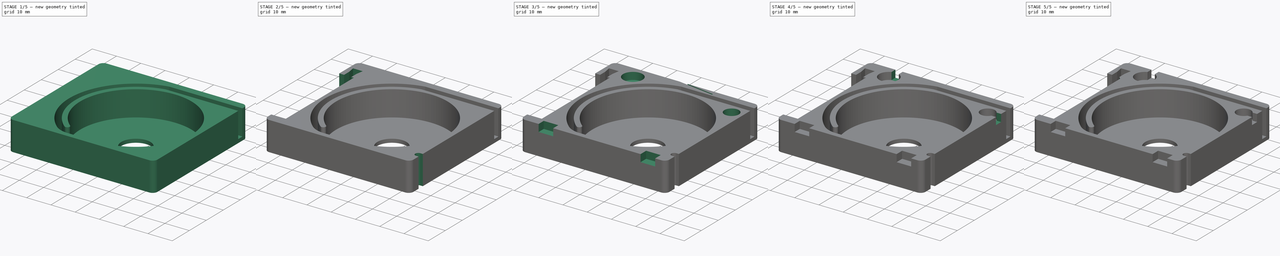
[diagram: build sequence overview — one tinted view per stage of 5, left to right]
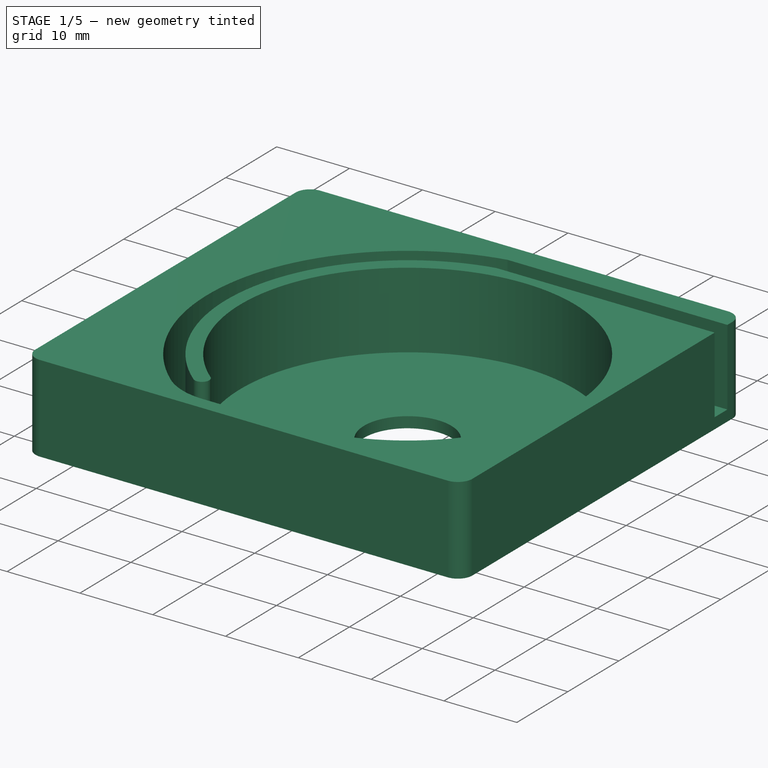
[diagram: stage 1 of 5 — iso view after this stage's code; geometry added in this stage tinted green]
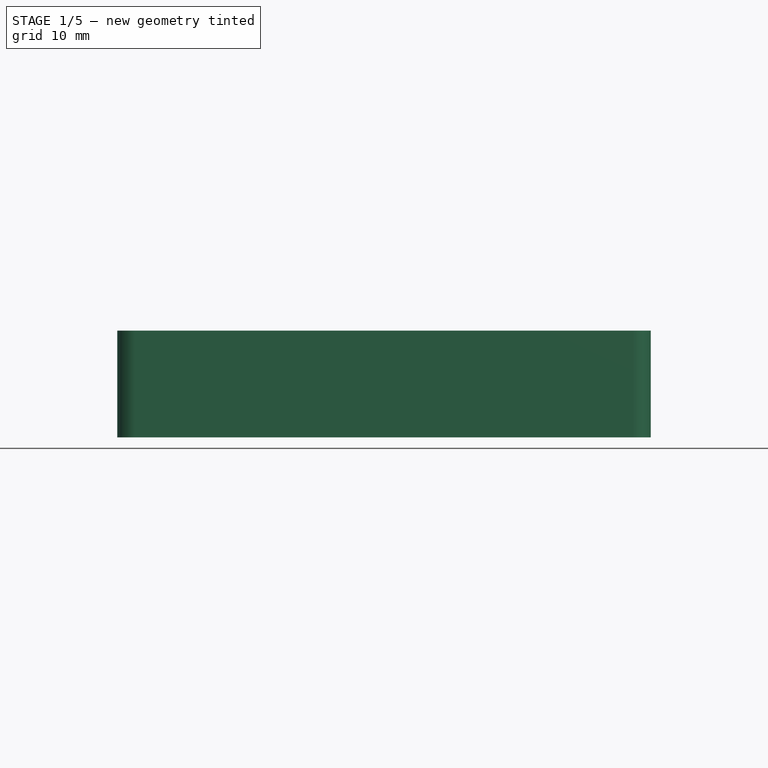
[diagram: stage 1 of 5 — front view after this stage's code; geometry added in this stage tinted green]
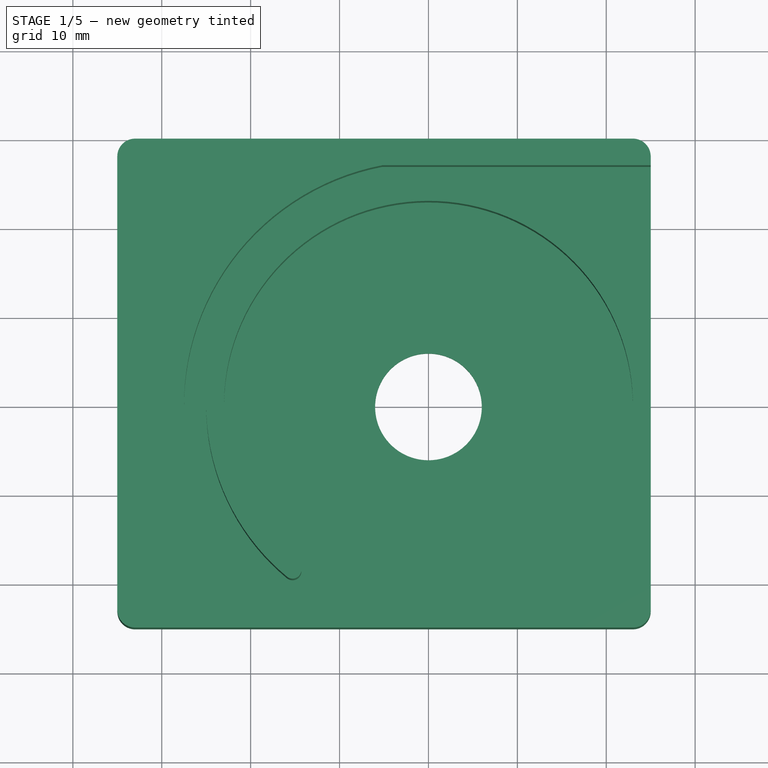
[diagram: stage 1 of 5 — top view after this stage's code; geometry added in this stage tinted green]
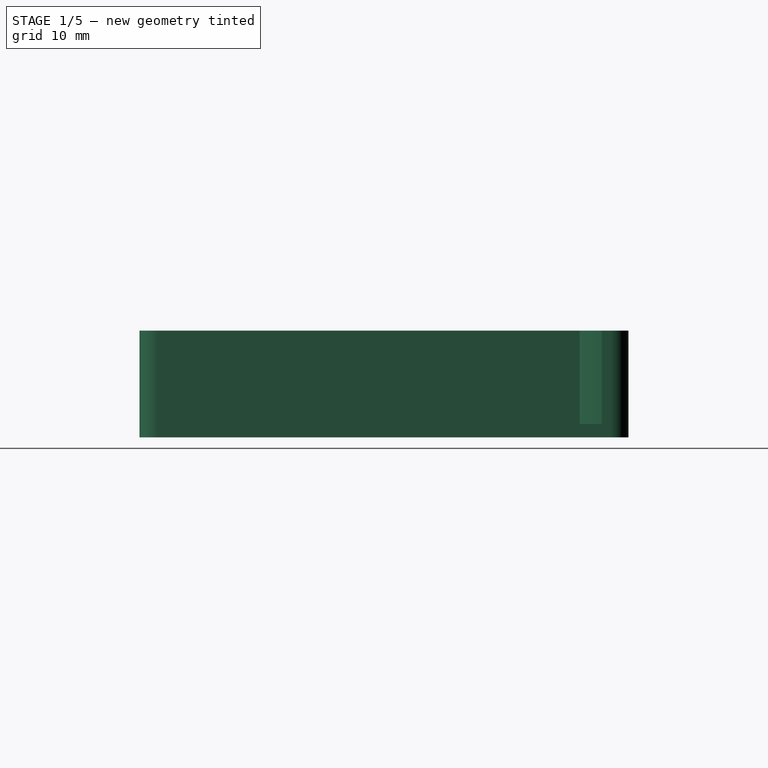
[diagram: stage 1 of 5 — right view after this stage's code; geometry added in this stage tinted green]
FCSTD DOCUMENT  (FreeCAD 1.0R39109 (Git))
Label: Cut tape Reel 12mm W x 18mm R v3
License: All rights reserved
LicenseURL: http://en.wikipedia.org/wiki/All_rights_reserved
objects: Sketcher::SketchObject×12, PartDesign::Pocket×10, PartDesign::Pad×2, PartDesign::Fillet×2, PartDesign::Chamfer×1, PartDesign::Body×1
note: 70 computed .brp shape members not serialized (recipe doc carries the construction recipe); baked Part::Feature solids carry a one-line shape summary decoded from their .brp

FEATURE [Sketcher::SketchObject] Sketch
  ArcFitTolerance = 0
  AttachmentSupport = -> [XY_Plane]
  FullyConstrained = true
  MakeInternals = false
  MapMode = 5
  sketch-geometry (11):
    g0: Circle CenterX=0 CenterY=0 CenterZ=0 NormalX=0 NormalY=0 NormalZ=1 AngleXU=0 Radius=6
    g1: ArcOfCircle CenterX=-33 CenterY=28 CenterZ=0 NormalX=0 NormalY=0 NormalZ=1 AngleXU=0 Radius=2 StartAngle=1.5708 EndAngle=3.14159
    g2: LineSegment StartX=-33 StartY=30 StartZ=0 EndX=23 EndY=30 EndZ=0
    g3: ArcOfCircle CenterX=23 CenterY=28 CenterZ=0 NormalX=0 NormalY=0 NormalZ=1 AngleXU=0 Radius=2 StartAngle=0 EndAngle=1.5708
    g4: LineSegment StartX=25 StartY=28 StartZ=0 EndX=25 EndY=-23 EndZ=0
    g5: ArcOfCircle CenterX=23 CenterY=-23 CenterZ=0 NormalX=0 NormalY=0 NormalZ=1 AngleXU=0 Radius=2 StartAngle=4.71239 EndAngle=6.28319
    g6: LineSegment StartX=23 StartY=-25 StartZ=0 EndX=-33 EndY=-25 EndZ=0
    g7: ArcOfCircle CenterX=-33 CenterY=-23 CenterZ=0 NormalX=0 NormalY=0 NormalZ=1 AngleXU=0 Radius=2 StartAngle=3.14159 EndAngle=4.71239
    g8: LineSegment StartX=-35 StartY=-23 StartZ=0 EndX=-35 EndY=28 EndZ=0
    g9: GeomPoint [constr] X=-35 Y=30 Z=0
    g10: GeomPoint [constr] X=25 Y=-25 Z=0
  constraints (26):
    c: Coincident(g0,g-1)
    c: Radius(g0) = 6
    c: Tangent(g1,g2) = 1.5708
    c: Tangent(g2,g3) = 1.5708
    c: Tangent(g3,g4) = 1.5708
    c: Tangent(g4,g5) = 1.5708
    c: Tangent(g5,g6) = 1.5708
    c: Tangent(g6,g7) = 1.5708
    c: Tangent(g7,g8) = 1.5708
    c: Tangent(g8,g1) = 1.5708
    c: Horizontal(g6)
    c: Vertical(g4)
    c: Equal(g1,g3)
    c: Equal(g3,g5)
    c: Equal(g5,g7)
    c: PointOnObject(g9,g2)
    c: PointOnObject(g9,g8)
    c: PointOnObject(g10,g4)
    c: PointOnObject(g10,g6)
    c: DistanceX(g1,g3) = 60
    c: Radius(g7) = 2
    c: Horizontal(g2)
    c: DistanceX(g0,g4) = 25
    c: DistanceY(g6) = -25
    c: DistanceY(g6,g1) = 55
    c: Vertical(g8)
FEATURE [PartDesign::Pad] Pad
  Direction = (0,0,1)
  Length = 12
  Length2 = 10
  Profile = -> Sketch
  ReferenceAxis = -> Sketch [N_Axis]
  Suppressed = false
  Type = 0
FEATURE [Sketcher::SketchObject] Sketch001
  ArcFitTolerance = 0
  AttachmentSupport = -> [Pad]
  ExternalGeometry = -> [Pad]
  FullyConstrained = true
  MakeInternals = false
  MapMode = 5
  Placement = pos=(0,0,12) rot=(0,0,1;0rad)
  sketch-geometry (9):
    g0: ArcOfCircle CenterX=-3.6e-15 CenterY=0 CenterZ=0 NormalX=0 NormalY=0 NormalZ=1 AngleXU=0 Radius=23 StartAngle=4.71239 EndAngle=10.3049
    g1: LineSegment StartX=-4.97494 StartY=24.5 StartZ=0 EndX=25 EndY=24.5 EndZ=0
    g2: LineSegment StartX=25 StartY=24.5 StartZ=0 EndX=25 EndY=27 EndZ=0
    g3: LineSegment StartX=25 StartY=27 StartZ=0 EndX=-5.22015 EndY=27 EndZ=0
    g4: ArcOfCircle CenterX=-3.6e-15 CenterY=0 CenterZ=0 NormalX=0 NormalY=0 NormalZ=1 AngleXU=0 Radius=27.5 StartAngle=1.76178 EndAngle=4.13221
    g5: ArcOfCircle CenterX=-3.6e-15 CenterY=0 CenterZ=0 NormalX=0 NormalY=0 NormalZ=1 AngleXU=0 Radius=25 StartAngle=1.77113 EndAngle=4.02176
    g6: LineSegment StartX=-15.0748 StartY=-23 StartZ=0 EndX=-5.3e-15 EndY=-23 EndZ=0
    g7: LineSegment [constr] StartX=-15.9255 StartY=-19.2712 StartZ=0 EndX=-5.3e-15 EndY=0 EndZ=0
    g8: ArcOfCircle CenterX=-15.2885 CenterY=-18.5003 CenterZ=0 NormalX=0 NormalY=0 NormalZ=1 AngleXU=0 Radius=1 StartAngle=4.02176 EndAngle=7.16335
  constraints (27):
    c: PointOnObject(g0,g-2)
    c: Coincident(g0,g-1)
    c: Radius(g0) = 23
    c: Coincident(g1,g2)
    c: Vertical(g2)
    c: Horizontal(g1)
    c: Horizontal(g3)
    c: Coincident(g2,g3)
    c: PointOnObject(g1,g-4)
    c: Coincident(g4,g0)
    c: Coincident(g5,g0)
    c: DistanceY(g2,g2) = 2.5
    c: Coincident(g1,g5)
    c: Coincident(g3,g4)
    c: Radius(g5) = 25
    c: Horizontal(g6)
    c: Coincident(g0,g6)
    c: Coincident(g4,g6)
    c: Radius(g4) = 27.5
    c: Coincident(g7,g5)
    c: Coincident(g7,g0)
    c: PointOnObject(g0,g7)
    c: PointOnObject(g8,g7)
    c: Coincident(g8,g5)
    c: Coincident(g8,g0)
    c: Angle(g-2,g7) = 2.45097
    c: DistanceY(g2,g-4) = 1
FEATURE [PartDesign::Pocket] Pocket
  BaseFeature = -> Pad
  Direction = (0,0,-1)
  Length = 10.5
  Length2 = 5
  Profile = -> Sketch001
  ReferenceAxis = -> Sketch001 [N_Axis]
  Refine = true
  Suppressed = false
  Type = 0
FEATURE [PartDesign::Fillet] Fillet
  Base = -> Pocket [Edge41]
  BaseFeature = -> Pocket
  Radius = 9
  Refine = true
  SupportTransform = false
  Suppressed = false
  UseAllEdges = false
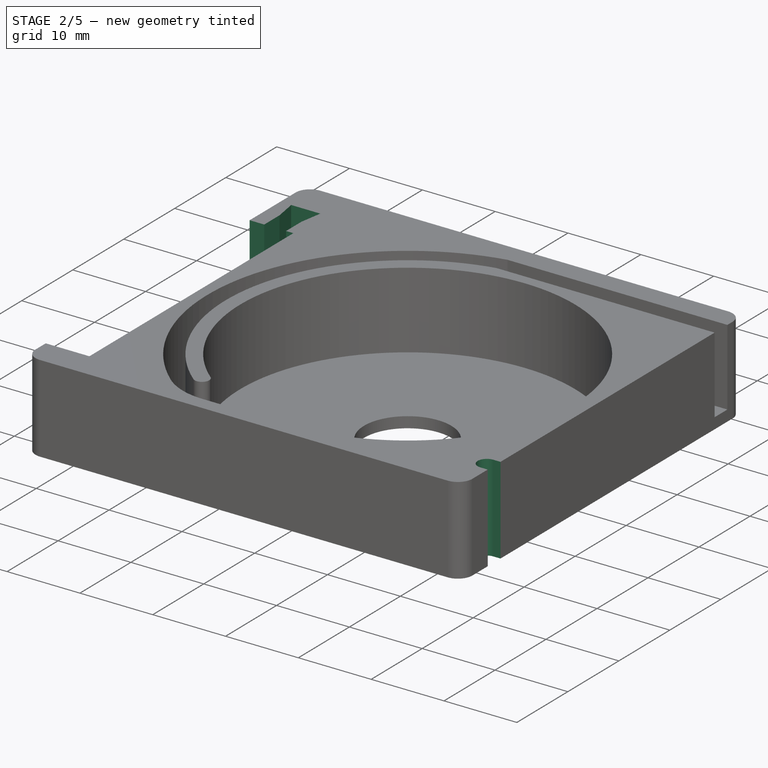
[diagram: stage 2 of 5 — iso view after this stage's code; geometry added in this stage tinted green]
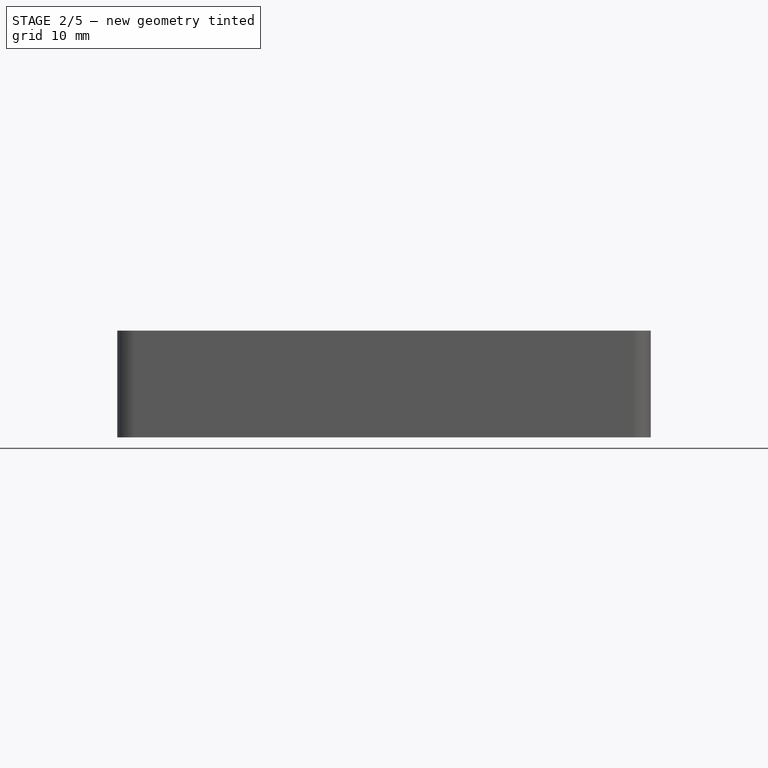
[diagram: stage 2 of 5 — front view after this stage's code; geometry added in this stage tinted green]
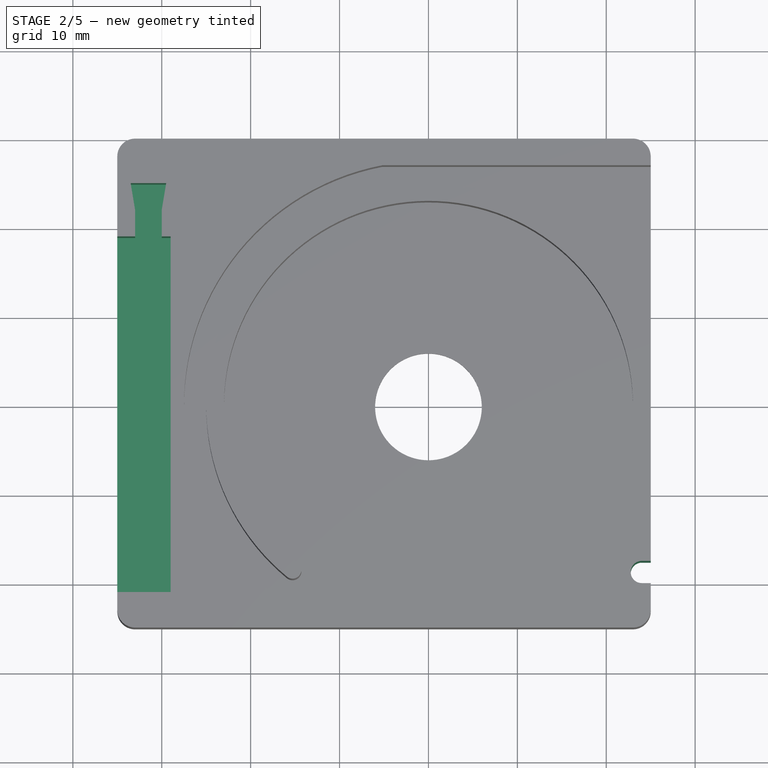
[diagram: stage 2 of 5 — top view after this stage's code; geometry added in this stage tinted green]
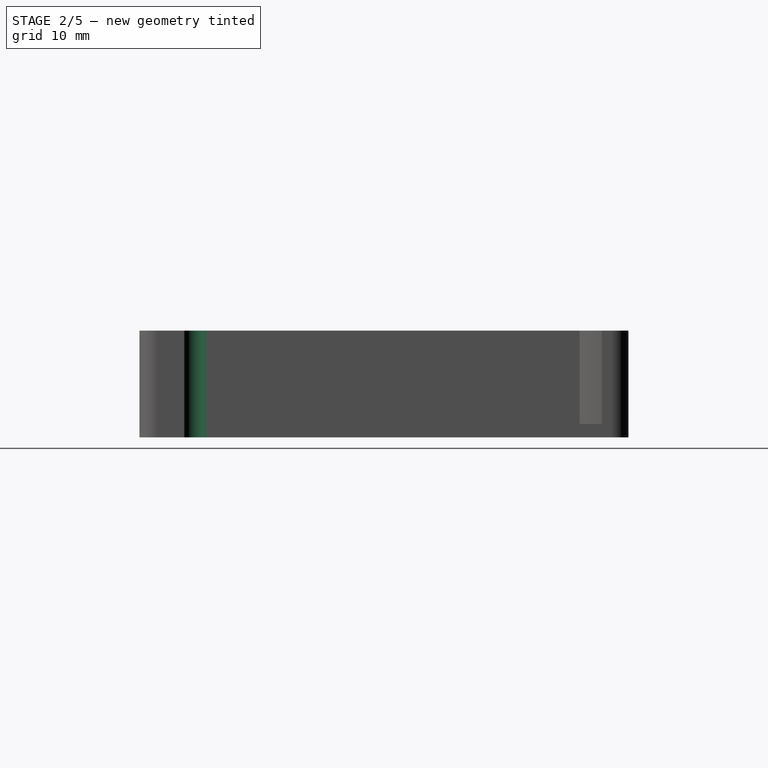
[diagram: stage 2 of 5 — right view after this stage's code; geometry added in this stage tinted green]
FEATURE [Sketcher::SketchObject] Sketch002
  ArcFitTolerance = 1e-06
  AttachmentSupport = -> [Fillet]
  ExternalGeometry = -> [Fillet]
  FullyConstrained = true
  MakeInternals = false
  MapMode = 5
  Placement = pos=(0,0,12) rot=(0,0,1;0rad)
  sketch-geometry (5):
    g0: ArcOfCircle CenterX=24 CenterY=-18.75 CenterZ=0 NormalX=0 NormalY=0 NormalZ=1 AngleXU=0 Radius=1.25 StartAngle=1.5708 EndAngle=4.71239
    g1: LineSegment StartX=24 StartY=-17.5 StartZ=0 EndX=25 EndY=-17.5 EndZ=0
    g2: LineSegment StartX=24 StartY=-20 StartZ=0 EndX=25 EndY=-20 EndZ=0
    g3: LineSegment StartX=25 StartY=-17.5 StartZ=0 EndX=25 EndY=-20 EndZ=0
    g4: LineSegment [constr] StartX=24 StartY=-17.5 StartZ=0 EndX=24 EndY=-20 EndZ=0
  constraints (13):
    c: Tangent(g0,g1) = 1.5708
    c: Tangent(g0,g2) = -1.5708
    c: Horizontal(g1)
    c: DistanceY(g0,g0) = 2.5
    c: Vertical(g3)
    c: Coincident(g2,g3)
    c: Coincident(g1,g3)
    c: PointOnObject(g2,g-3)
    c: Vertical(g4)
    c: Coincident(g0,g4)
    c: Coincident(g0,g4)
    c: DistanceX(g1,g1) = 1
    c: DistanceY(g-3,g2) = 3
FEATURE [PartDesign::Pocket] Pocket001
  BaseFeature = -> Fillet
  Direction = (0,0,-1)
  Length = 5
  Length2 = 5
  Profile = -> Sketch002
  ReferenceAxis = -> Sketch002 [N_Axis]
  Refine = true
  Suppressed = false
  Type = 1
FEATURE [Sketcher::SketchObject] Sketch003
  ArcFitTolerance = 1e-06
  AttachmentSupport = -> [Pocket001]
  ExternalGeometry = -> [Pocket001]
  FullyConstrained = true
  MakeInternals = false
  MapMode = 5
  Placement = pos=(0,0,12) rot=(0,0,1;0rad)
  sketch-geometry (4):
    g0: LineSegment StartX=-35 StartY=19 StartZ=0 EndX=-35 EndY=-21 EndZ=0
    g1: LineSegment StartX=-35 StartY=-21 StartZ=0 EndX=-29 EndY=-21 EndZ=0
    g2: LineSegment StartX=-29 StartY=-21 StartZ=0 EndX=-29 EndY=19 EndZ=0
    g3: LineSegment StartX=-29 StartY=19 StartZ=0 EndX=-35 EndY=19 EndZ=0
  constraints (12):
    c: Coincident(g0,g1)
    c: Coincident(g1,g2)
    c: Coincident(g2,g3)
    c: Coincident(g3,g0)
    c: Vertical(g0)
    c: Vertical(g2)
    c: Horizontal(g1)
    c: Horizontal(g3)
    c: DistanceY(g-3,g0) = 2
    c: PointOnObject(g0,g-3)
    c: DistanceX(g3,g3) = 6
    c: DistanceY(g2,g2) = 40
FEATURE [PartDesign::Pocket] Pocket002
  BaseFeature = -> Pocket001
  Direction = (0,0,-1)
  Length = 10.5
  Length2 = 5
  Profile = -> Sketch003
  ReferenceAxis = -> Sketch003 [N_Axis]
  Refine = true
  Suppressed = false
  Type = 0
FEATURE [Sketcher::SketchObject] Sketch004
  ArcFitTolerance = 1e-06
  AttachmentSupport = -> [Pocket002]
  ExternalGeometry = -> [Pocket002]
  FullyConstrained = true
  MakeInternals = false
  MapMode = 5
  Placement = pos=(0,0,12) rot=(0,0,1;0rad)
  sketch-geometry (8):
    g0: LineSegment StartX=-33 StartY=22 StartZ=0 EndX=-33 EndY=19 EndZ=0
    g1: LineSegment StartX=-33 StartY=19 StartZ=0 EndX=-30 EndY=19 EndZ=0
    g2: LineSegment StartX=-30 StartY=19 StartZ=0 EndX=-30 EndY=22 EndZ=0
    g3: LineSegment StartX=-33.5 StartY=25 StartZ=0 EndX=-33 EndY=22 EndZ=0
    g4: LineSegment [constr] StartX=-33 StartY=22 StartZ=0 EndX=-30 EndY=22 EndZ=0
    g5: LineSegment StartX=-30 StartY=22 StartZ=0 EndX=-29.5 EndY=25 EndZ=0
    g6: LineSegment StartX=-29.5 StartY=25 StartZ=0 EndX=-33.5 EndY=25 EndZ=0
    g7: LineSegment [constr] StartX=-31.5 StartY=25 StartZ=0 EndX=-31.5 EndY=19 EndZ=0
  constraints (22):
    c: Coincident(g0,g1)
    c: Coincident(g1,g2)
    c: Vertical(g0)
    c: Vertical(g2)
    c: Horizontal(g1)
    c: DistanceX(g0,g2) = 3
    c: PointOnObject(g0,g-3)
    c: DistanceY(g2,g2) = 3
    c: Coincident(g3,g4)
    c: Coincident(g4,g5)
    c: Coincident(g5,g6)
    c: Coincident(g6,g3)
    c: Horizontal(g4)
    c: Horizontal(g6)
    c: Coincident(g3,g0)
    c: Coincident(g4,g2)
    c: Symmetric(g6,g6,g7)
    c: Symmetric(g0,g2,g7)
    c: DistanceX(g6,g6) = 4
    c: DistanceY(g0,g3) = 3
    c: DistanceX(g1,g-3) = 1
    c: PointOnObject(g7,g1)
FEATURE [PartDesign::Pocket] Pocket003
  BaseFeature = -> Pocket002
  Direction = (0,0,-1)
  Length = 10
  Length2 = 5
  Profile = -> Sketch004
  ReferenceAxis = -> Sketch004 [N_Axis]
  Refine = true
  Suppressed = false
  Type = 0
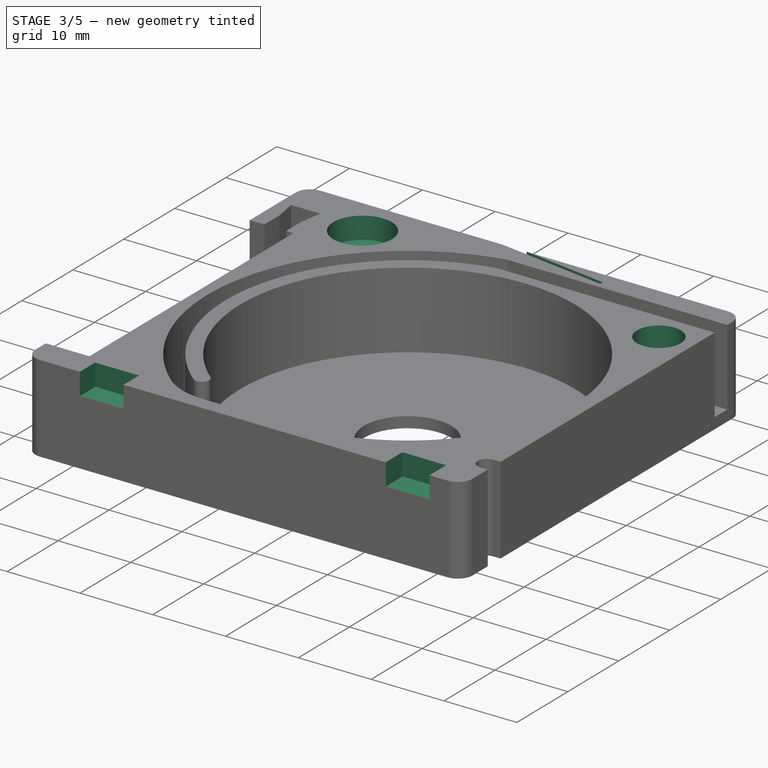
[diagram: stage 3 of 5 — iso view after this stage's code; geometry added in this stage tinted green]
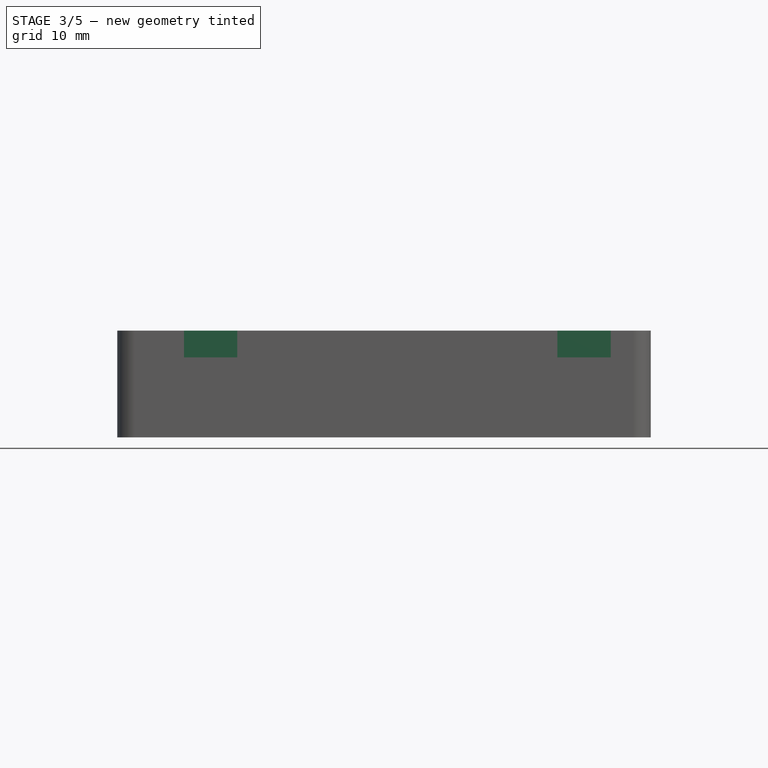
[diagram: stage 3 of 5 — front view after this stage's code; geometry added in this stage tinted green]
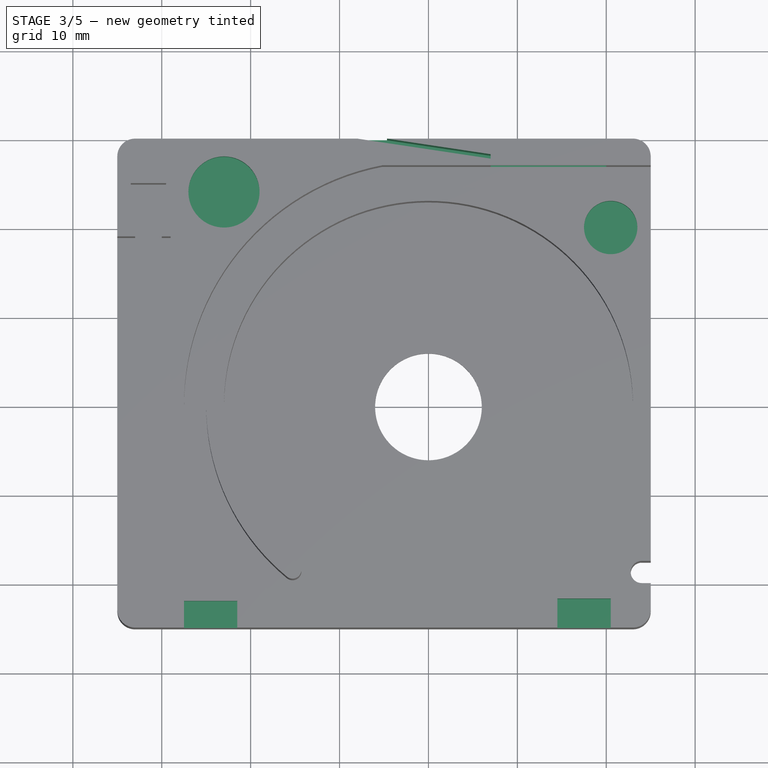
[diagram: stage 3 of 5 — top view after this stage's code; geometry added in this stage tinted green]
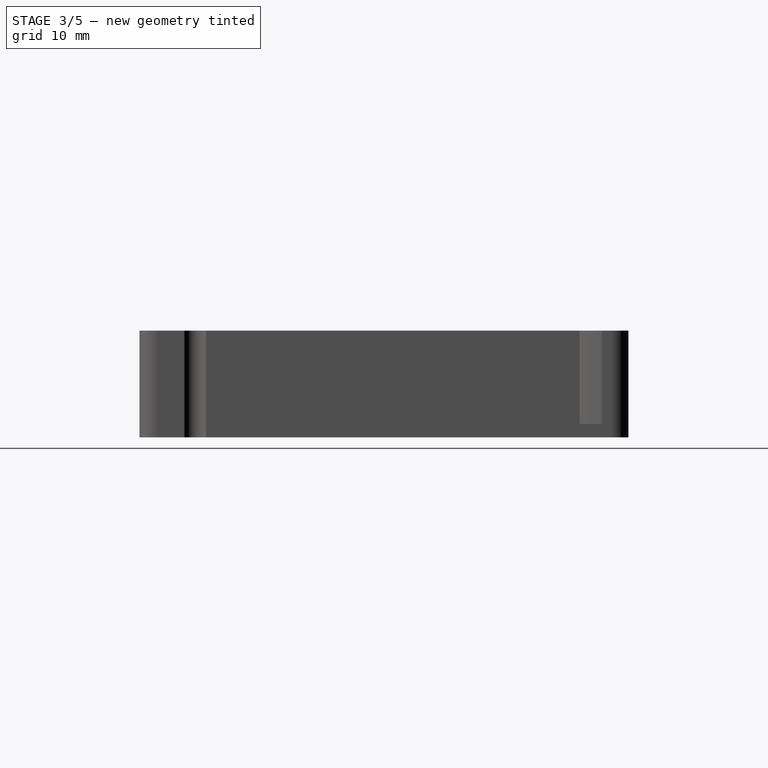
[diagram: stage 3 of 5 — right view after this stage's code; geometry added in this stage tinted green]
FEATURE [Sketcher::SketchObject] Sketch005
  ArcFitTolerance = 1e-06
  AttachmentSupport = -> [Pocket003]
  ExternalGeometry = -> [Pocket003]
  FullyConstrained = true
  MakeInternals = false
  MapMode = 5
  Placement = pos=(0,0,12) rot=(0,0,1;0rad)
  sketch-geometry (10):
    g0: Circle CenterX=-23 CenterY=24 CenterZ=0 NormalX=0 NormalY=0 NormalZ=1 AngleXU=0 Radius=4
    g1: LineSegment StartX=-27.5 StartY=-22 StartZ=0 EndX=-27.5 EndY=-25 EndZ=0
    g2: LineSegment StartX=-27.5 StartY=-25 StartZ=0 EndX=-21.5 EndY=-25 EndZ=0
    g3: LineSegment StartX=-21.5 StartY=-25 StartZ=0 EndX=-21.5 EndY=-22 EndZ=0
    g4: LineSegment StartX=-21.5 StartY=-22 StartZ=0 EndX=-27.5 EndY=-22 EndZ=0
    g5: LineSegment StartX=14.5 StartY=-21.7334 StartZ=0 EndX=14.5 EndY=-25 EndZ=0
    g6: LineSegment StartX=14.5 StartY=-25 StartZ=0 EndX=20.5 EndY=-25 EndZ=0
    g7: LineSegment StartX=20.5 StartY=-25 StartZ=0 EndX=20.5 EndY=-21.7334 EndZ=0
    g8: LineSegment StartX=20.5 StartY=-21.7334 StartZ=0 EndX=14.5 EndY=-21.7334 EndZ=0
    g9: Circle CenterX=20.5 CenterY=20 CenterZ=0 NormalX=0 NormalY=0 NormalZ=1 AngleXU=0 Radius=3
  constraints (30):
    c: Radius(g0) = 4
    c: DistanceY(g0,g-3) = 6
    c: DistanceX(g-3,g0) = 10
    c: Coincident(g1,g2)
    c: Coincident(g2,g3)
    c: Coincident(g3,g4)
    c: Coincident(g4,g1)
    c: Vertical(g1)
    c: Vertical(g3)
    c: Horizontal(g2)
    c: Horizontal(g4)
    c: Coincident(g5,g6)
    c: Coincident(g6,g7)
    c: Coincident(g7,g8)
    c: Coincident(g8,g5)
    c: Vertical(g5)
    c: Vertical(g7)
    c: Horizontal(g6)
    c: Horizontal(g8)
    c: PointOnObject(g1,g-4)
    c: PointOnObject(g5,g-4)
    c: Equal(g4,g8)
    c: DistanceX(g4,g4) = 6
    c: DistanceX(g2,g5) = 36
    c: DistanceY(g1,g1) = 3
    c: DistanceX(g6,g-4) = 2.5
    c: Radius(g9) = 3
    c: DistanceY(g9,g-3) = 10
    c: DistanceX(g9,g-3) = 2.5
    c: Equal(g8,g4)
FEATURE [PartDesign::Pocket] Pocket004
  BaseFeature = -> Pocket003
  Direction = (0,0,-1)
  Length = 3
  Length2 = 5
  Profile = -> Sketch005
  ReferenceAxis = -> Sketch005 [N_Axis]
  Refine = true
  Suppressed = false
  Type = 0
FEATURE [Sketcher::SketchObject] Sketch006
  ArcFitTolerance = 1e-06
  AttachmentSupport = -> [Pocket004]
  ExternalGeometry = -> [Pocket004]
  FullyConstrained = true
  MakeInternals = false
  MapMode = 5
  Placement = pos=(0,30,0) rot=(0,0.707107,0.707107;3.14159rad)
  sketch-geometry (4):
    g0: LineSegment StartX=-20 StartY=10.5 StartZ=0 EndX=-20 EndY=1.5 EndZ=0
    g1: LineSegment StartX=-20 StartY=1.5 StartZ=0 EndX=-7 EndY=1.5 EndZ=0
    g2: LineSegment StartX=-7 StartY=1.5 StartZ=0 EndX=-7 EndY=10.5 EndZ=0
    g3: LineSegment StartX=-7 StartY=10.5 StartZ=0 EndX=-20 EndY=10.5 EndZ=0
  constraints (12):
    c: Coincident(g0,g1)
    c: Coincident(g1,g2)
    c: Coincident(g2,g3)
    c: Coincident(g3,g0)
    c: Vertical(g0)
    c: Vertical(g2)
    c: Horizontal(g1)
    c: Horizontal(g3)
    c: DistanceX(g3,g3) = 13
    c: PointOnObject(g0,g-3)
    c: DistanceY(g0,g0) = 9
    c: DistanceX(g2,g-1) = 7
FEATURE [PartDesign::Pocket] Pocket005
  BaseFeature = -> Pocket004
  Direction = (0,-1,2e-16)
  Length = 5
  Length2 = 5
  Profile = -> Sketch006
  ReferenceAxis = -> Sketch006 [N_Axis]
  Refine = true
  Suppressed = false
  Type = 0
FEATURE [Sketcher::SketchObject] Sketch007
  ArcFitTolerance = 1e-06
  AttachmentSupport = -> [Pocket005]
  ExternalGeometry = -> [Pocket005]
  FullyConstrained = true
  MakeInternals = false
  MapMode = 5
  Placement = pos=(0,0,12) rot=(0,0,1;0rad)
  sketch-geometry (4):
    g0: LineSegment StartX=7 StartY=27.75 StartZ=0 EndX=-8 EndY=30 EndZ=0
    g1: LineSegment StartX=7 StartY=28.25 StartZ=0 EndX=-4.66667 EndY=30 EndZ=0
    g2: LineSegment StartX=7 StartY=28.25 StartZ=0 EndX=7 EndY=27.75 EndZ=0
    g3: LineSegment StartX=-8 StartY=30 StartZ=0 EndX=-4.66667 EndY=30 EndZ=0
  constraints (12):
    c: PointOnObject(g0,g-3)
    c: PointOnObject(g1,g-3)
    c: PointOnObject(g0,g-4)
    c: PointOnObject(g1,g-4)
    c: DistanceY(g-3,g0) = 0.75
    c: Coincident(g2,g1)
    c: Coincident(g2,g0)
    c: DistanceY(g2,g2) = 0.5
    c: Coincident(g3,g0)
    c: Coincident(g3,g1)
    c: DistanceX(g0,g-3) = 15
    c: Parallel(g1,g0)
FEATURE [PartDesign::Pocket] Pocket006
  BaseFeature = -> Pocket005
  Direction = (0,0,-1)
  Length = 10.5
  Length2 = 5
  Profile = -> Sketch007
  ReferenceAxis = -> Sketch007 [N_Axis]
  Refine = true
  Suppressed = false
  Type = 0
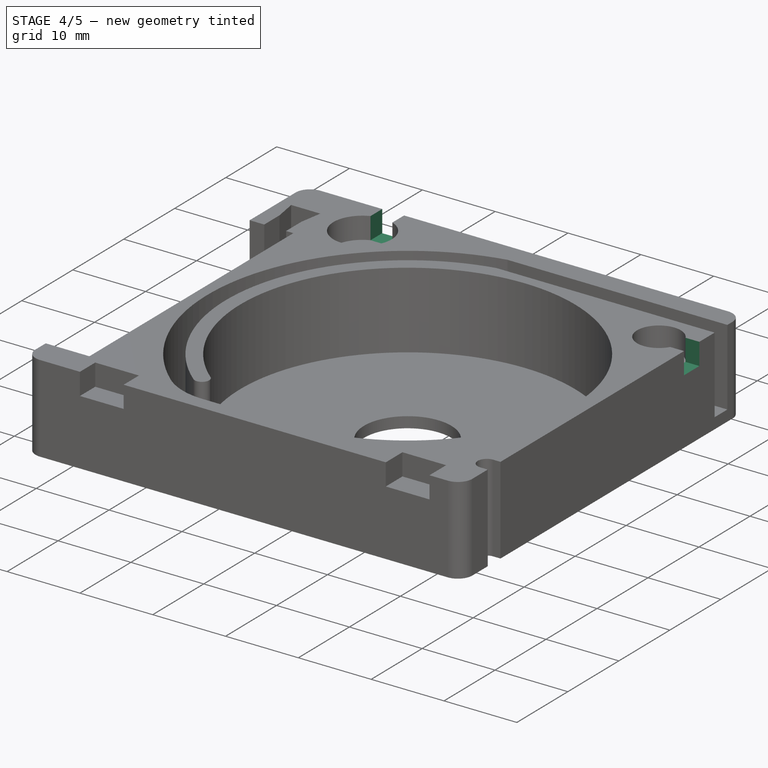
[diagram: stage 4 of 5 — iso view after this stage's code; geometry added in this stage tinted green]
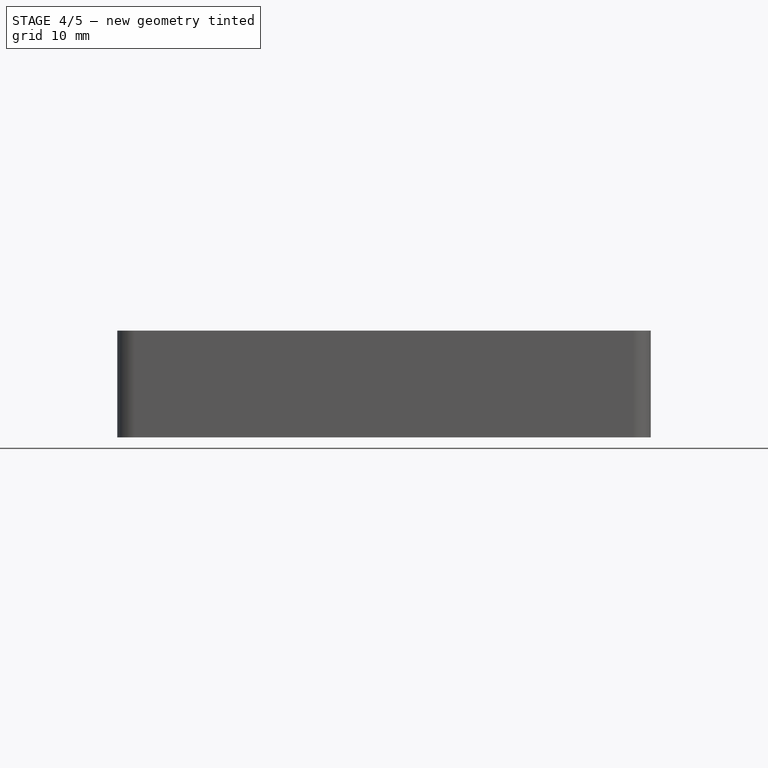
[diagram: stage 4 of 5 — front view after this stage's code; geometry added in this stage tinted green]
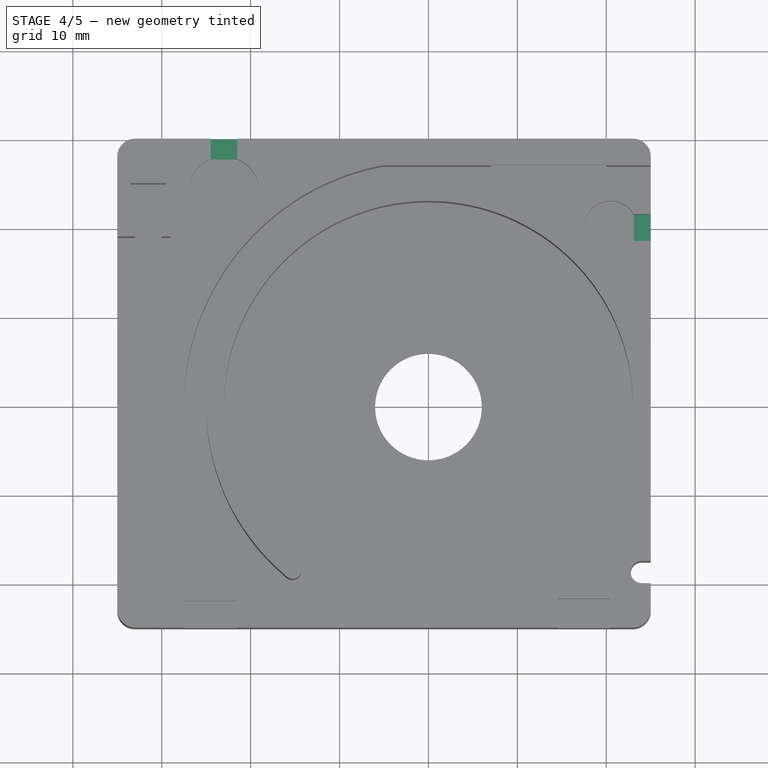
[diagram: stage 4 of 5 — top view after this stage's code; geometry added in this stage tinted green]
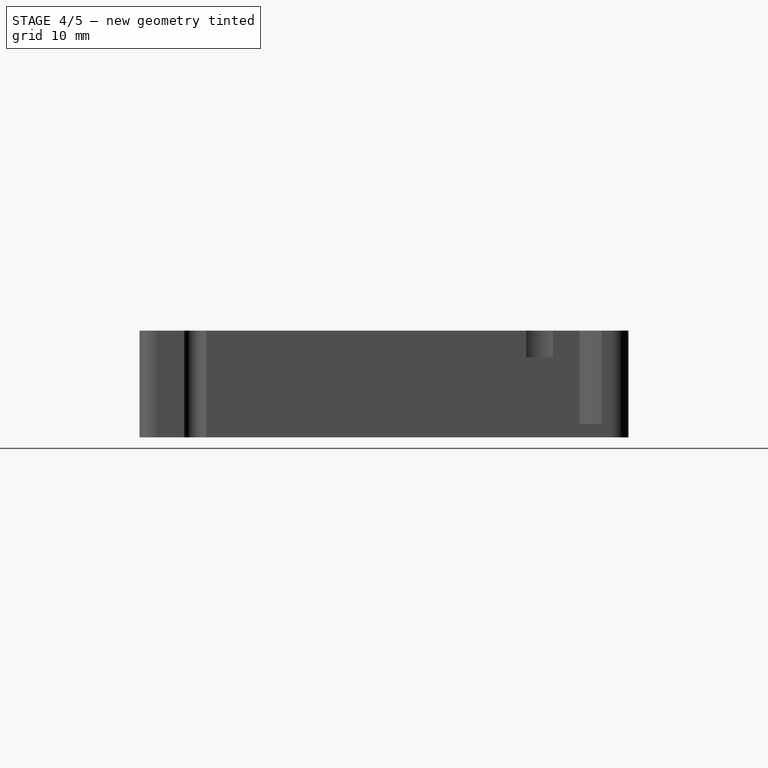
[diagram: stage 4 of 5 — right view after this stage's code; geometry added in this stage tinted green]
FEATURE [Sketcher::SketchObject] Sketch008
  ArcFitTolerance = 1e-06
  AttachmentSupport = -> [Pocket006]
  ExternalGeometry = -> [Pocket006]
  FullyConstrained = true
  MakeInternals = false
  MapMode = 5
  Placement = pos=(0,0,12) rot=(0,0,1;0rad)
  sketch-geometry (4):
    g0: LineSegment StartX=-8 StartY=30 StartZ=0 EndX=-8 EndY=27 EndZ=0
    g1: LineSegment StartX=-8 StartY=27 StartZ=0 EndX=7 EndY=27 EndZ=0
    g2: LineSegment StartX=7 StartY=27 StartZ=0 EndX=7 EndY=30 EndZ=0
    g3: LineSegment StartX=7 StartY=30 StartZ=0 EndX=-8 EndY=30 EndZ=0
  constraints (11):
    c: Coincident(g0,g1)
    c: Coincident(g1,g2)
    c: Coincident(g2,g3)
    c: Coincident(g3,g0)
    c: Vertical(g0)
    c: Vertical(g2)
    c: Horizontal(g1)
    c: Horizontal(g3)
    c: PointOnObject(g1,g-5)
    c: Coincident(g0,g-3)
    c: PointOnObject(g-4,g2)
FEATURE [PartDesign::Pocket] Pocket007
  BaseFeature = -> Pocket006
  Direction = (0,0,-1)
  Length = 1.5
  Length2 = 5
  Profile = -> Sketch008
  ReferenceAxis = -> Sketch008 [N_Axis]
  Refine = true
  Suppressed = false
  Type = 0
FEATURE [Sketcher::SketchObject] Sketch009
  ArcFitTolerance = 1e-06
  AttachmentSupport = -> [Pocket007]
  ExternalGeometry = -> [Pocket007]
  FullyConstrained = true
  MakeInternals = false
  MapMode = 5
  Placement = pos=(0,0,10.5) rot=(0,0,1;0rad)
  sketch-geometry (4):
    g0: LineSegment StartX=-8 StartY=30 StartZ=0 EndX=-8 EndY=27 EndZ=0
    g1: LineSegment StartX=-8 StartY=27 StartZ=0 EndX=7 EndY=27 EndZ=0
    g2: LineSegment StartX=7 StartY=27 StartZ=0 EndX=7 EndY=30 EndZ=0
    g3: LineSegment StartX=7 StartY=30 StartZ=0 EndX=-8 EndY=30 EndZ=0
  constraints (9):
    c: Coincident(g0,g1)
    c: Coincident(g1,g2)
    c: Coincident(g2,g3)
    c: Coincident(g3,g0)
    c: Vertical(g2)
    c: Horizontal(g3)
    c: Coincident(g1,g-3)
    c: Coincident(g0,g-4)
    c: Coincident(g0,g-4)
FEATURE [PartDesign::Pad] Pad001
  BaseFeature = -> Pocket007
  Direction = (0,0,1)
  Length = 1.5
  Length2 = 10
  Profile = -> Sketch009
  ReferenceAxis = -> Sketch009 [N_Axis]
  Refine = true
  Suppressed = false
  Type = 0
FEATURE [Sketcher::SketchObject] Sketch010
  ArcFitTolerance = 1e-06
  AttachmentSupport = -> [Pad001]
  ExternalGeometry = -> [Pad001]
  FullyConstrained = true
  MakeInternals = false
  MapMode = 5
  Placement = pos=(0,0,12) rot=(0,0,1;0rad)
  sketch-geometry (10):
    g0: LineSegment StartX=-24.5 StartY=30 StartZ=0 EndX=-24.5 EndY=27.7081 EndZ=0
    g1: LineSegment [constr] StartX=-24.5 StartY=27.7081 StartZ=0 EndX=-21.5 EndY=27.7081 EndZ=0
    g2: LineSegment StartX=-21.5 StartY=27.7081 StartZ=0 EndX=-21.5 EndY=30 EndZ=0
    g3: LineSegment StartX=-21.5 StartY=30 StartZ=0 EndX=-24.5 EndY=30 EndZ=0
    g4: LineSegment [constr] StartX=23.0981 StartY=21.5 StartZ=0 EndX=23.0981 EndY=18.5 EndZ=0
    g5: LineSegment StartX=23.0981 StartY=18.5 StartZ=0 EndX=25 EndY=18.5 EndZ=0
    g6: LineSegment StartX=25 StartY=18.5 StartZ=0 EndX=25 EndY=21.5 EndZ=0
    g7: LineSegment StartX=25 StartY=21.5 StartZ=0 EndX=23.0981 EndY=21.5 EndZ=0
    g8: ArcOfCircle CenterX=-23 CenterY=24 CenterZ=0 NormalX=0 NormalY=0 NormalZ=1 AngleXU=0 Radius=4 StartAngle=1.1864 EndAngle=1.95519
    g9: ArcOfCircle CenterX=20.5 CenterY=20 CenterZ=0 NormalX=0 NormalY=0 NormalZ=1 AngleXU=0 Radius=3 StartAngle=5.75959 EndAngle=6.80678
  constraints (28):
    c: Coincident(g0,g1)
    c: Coincident(g1,g2)
    c: Coincident(g2,g3)
    c: Coincident(g3,g0)
    c: Vertical(g0)
    c: Vertical(g2)
    c: Horizontal(g1)
    c: Horizontal(g3)
    c: Coincident(g4,g5)
    c: Coincident(g5,g6)
    c: Coincident(g6,g7)
    c: Coincident(g7,g4)
    c: Vertical(g4)
    c: Vertical(g6)
    c: Horizontal(g5)
    c: Horizontal(g7)
    c: PointOnObject(g0,g-5)
    c: PointOnObject(g6,g-6)
    c: DistanceY(g6,g6) = 3
    c: PointOnObject(g4,g-4)
    c: PointOnObject(g0,g-3)
    c: DistanceX(g3,g3) = 3
    c: Coincident(g8,g-3)
    c: Coincident(g8,g1)
    c: Coincident(g8,g0)
    c: Coincident(g4,g9)
    c: Coincident(g4,g9)
    c: Coincident(g9,g-4)
FEATURE [PartDesign::Pocket] Pocket008
  BaseFeature = -> Pad001
  Direction = (0,0,-1)
  Length = 3
  Length2 = 5
  Profile = -> Sketch010
  ReferenceAxis = -> Sketch010 [N_Axis]
  Refine = true
  Suppressed = false
  Type = 0
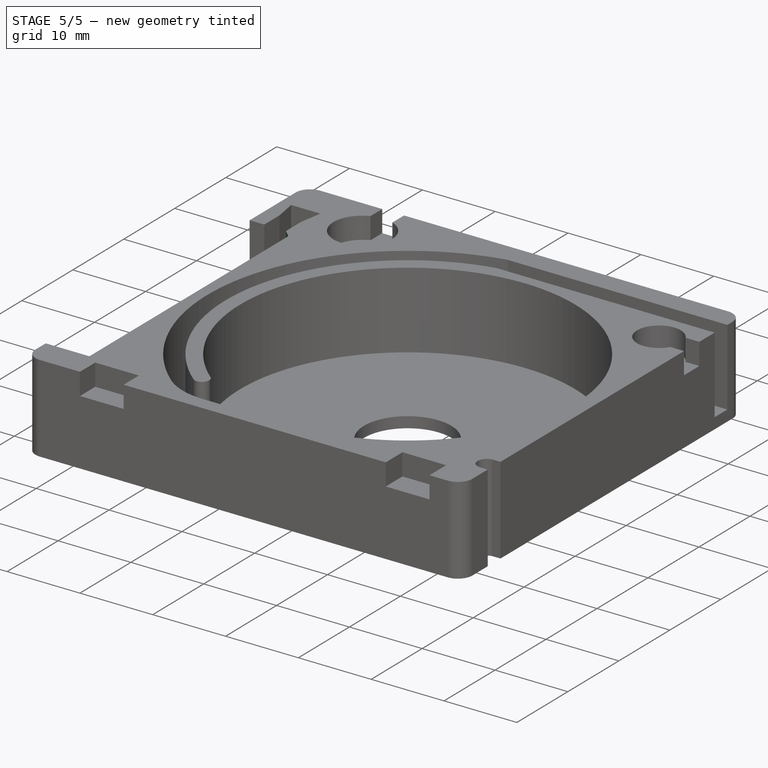
[diagram: stage 5 of 5 — iso view after this stage's code; geometry added in this stage tinted green]
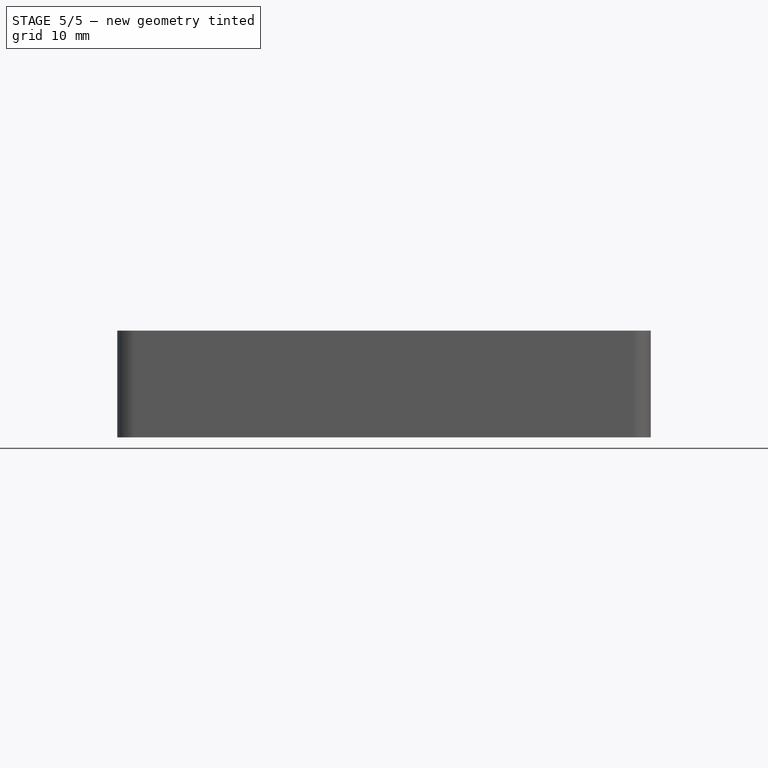
[diagram: stage 5 of 5 — front view after this stage's code; geometry added in this stage tinted green]
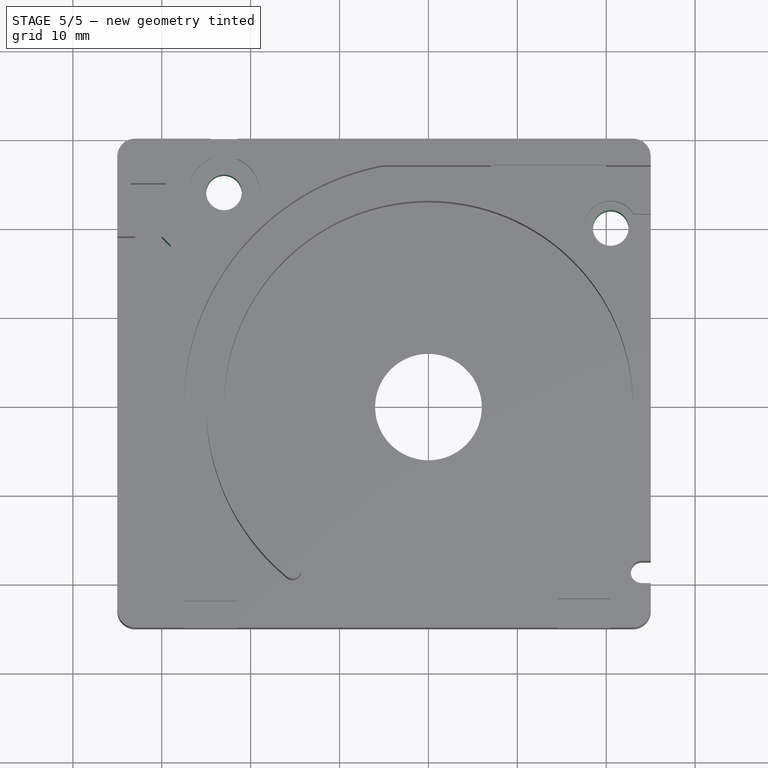
[diagram: stage 5 of 5 — top view after this stage's code; geometry added in this stage tinted green]
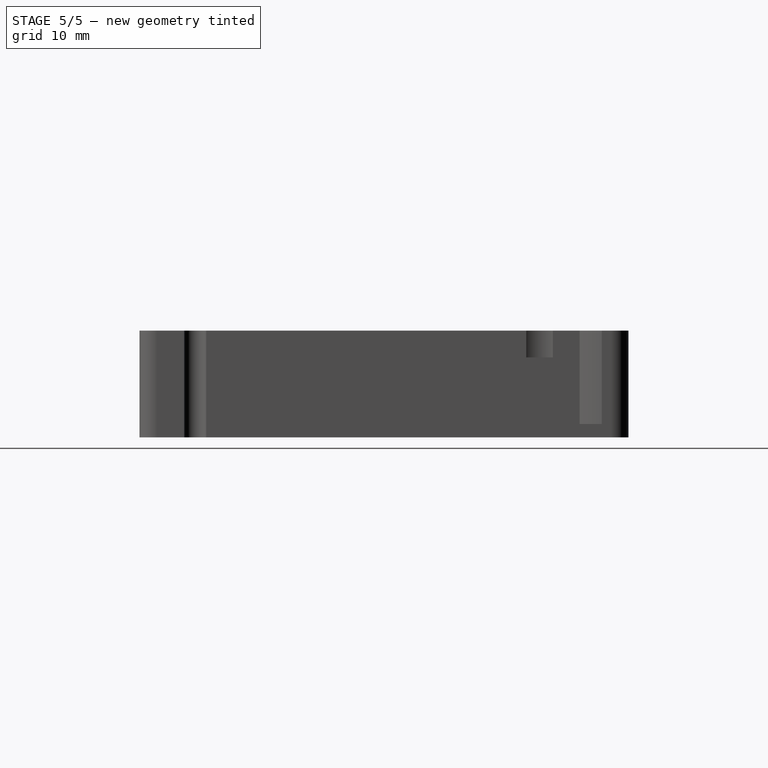
[diagram: stage 5 of 5 — right view after this stage's code; geometry added in this stage tinted green]
FEATURE [PartDesign::Fillet] Fillet001
  Base = -> Pocket008 [Edge146]
  BaseFeature = -> Pocket008
  Radius = 0.25
  Refine = true
  SupportTransform = false
  Suppressed = false
  UseAllEdges = false
FEATURE [Sketcher::SketchObject] Sketch011
  ArcFitTolerance = 1e-06
  AttachmentSupport = -> [Fillet001]
  ExternalGeometry = -> [Fillet001]
  FullyConstrained = true
  MakeInternals = false
  MapMode = 5
  Placement = pos=(0,0,9) rot=(0,0,1;0rad)
  sketch-geometry (2):
    g0: Circle CenterX=-23 CenterY=24 CenterZ=0 NormalX=0 NormalY=0 NormalZ=1 AngleXU=0 Radius=2
    g1: Circle CenterX=20.5 CenterY=20 CenterZ=0 NormalX=0 NormalY=0 NormalZ=1 AngleXU=0 Radius=2
  constraints (4):
    c: Coincident(g0,g-3)
    c: Coincident(g1,g-4)
    c: Equal(g1,g0)
    c: Radius(g0) = 2
FEATURE [PartDesign::Pocket] Pocket009
  BaseFeature = -> Fillet001
  Direction = (0,0,-1)
  Length = 5
  Length2 = 5
  Profile = -> Sketch011
  ReferenceAxis = -> Sketch011 [N_Axis]
  Refine = true
  Suppressed = false
  Type = 1
FEATURE [PartDesign::Chamfer] Chamfer
  Angle = 45
  Base = -> Pocket009 [Edge167]
  BaseFeature = -> Pocket009
  ChamferType = 0
  FlipDirection = false
  Refine = true
  Size = 1
  Size2 = 1
  SupportTransform = false
  Suppressed = false
  UseAllEdges = false
FEATURE [PartDesign::Body] Body
  AllowCompound = false
  Group = -> [Sketch,Pad,Sketch001,Pocket,Fillet,Sketch002,Pocket001,Sketch003,Pocket002,Sketch004,Pocket003,Sketch005,Pocket004,Sketch006,Pocket005,Sketch007,Pocket006,Sketch008,Pocket007,Sketch009,Pad001,Sketch010,Pocket008,Fillet001,Sketch011,Pocket009,Chamfer]
  Origin = -> Origin
  Tip = -> Chamfer
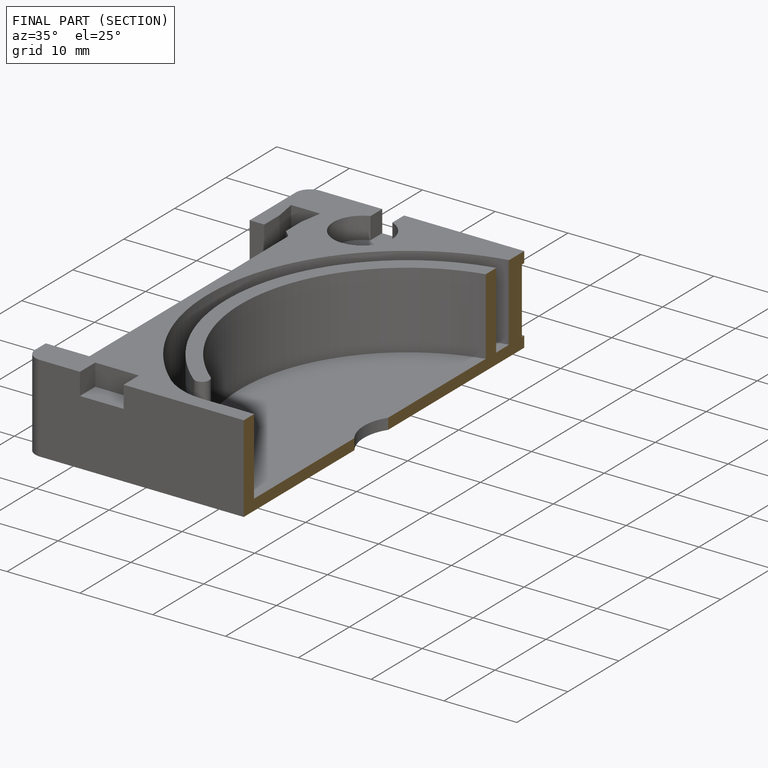
[diagram: finished part — half-section view (interior)]
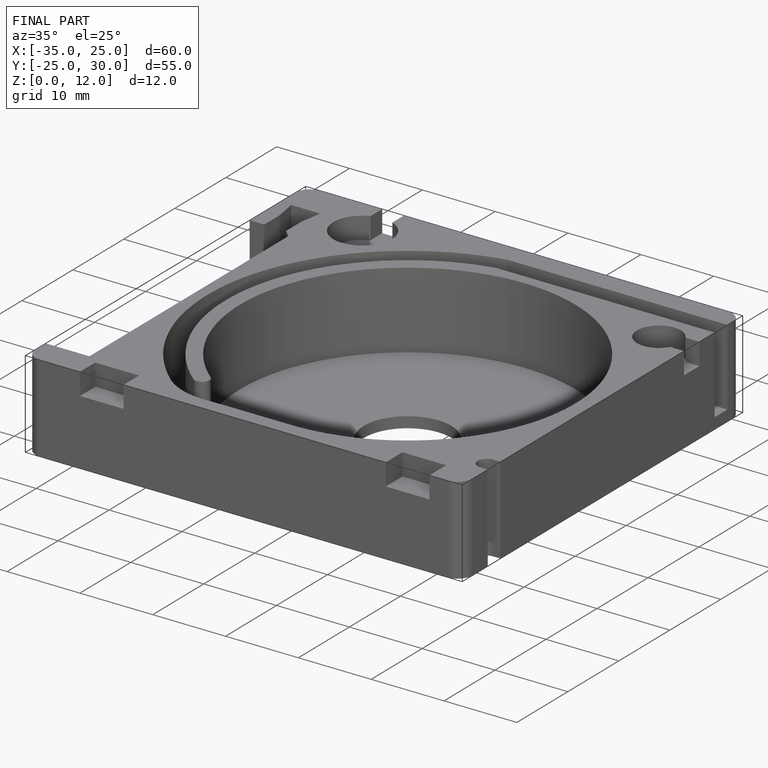
[diagram: finished part — iso view with bounding-box wireframe]
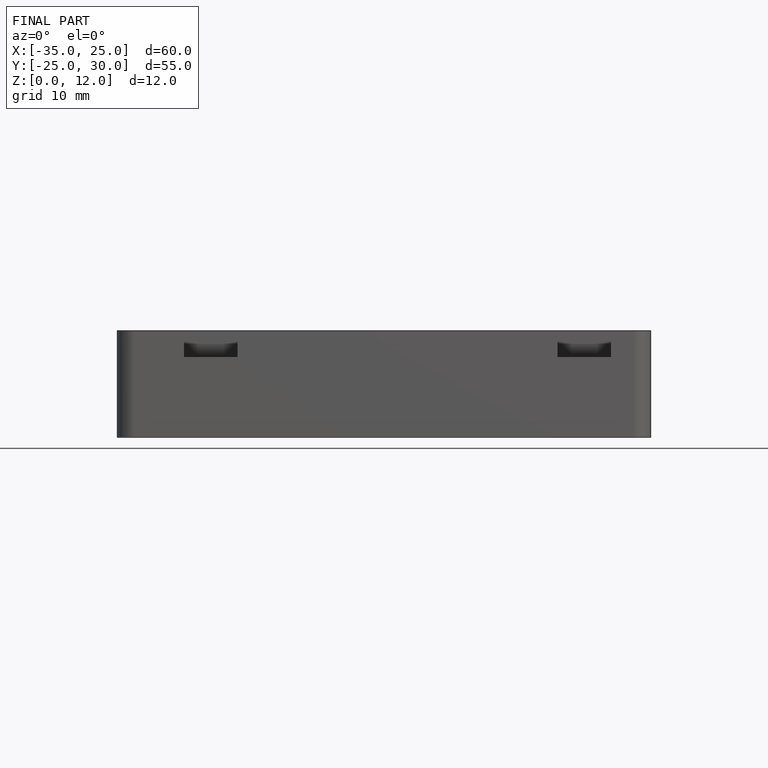
[diagram: finished part — front view with bounding-box wireframe]
